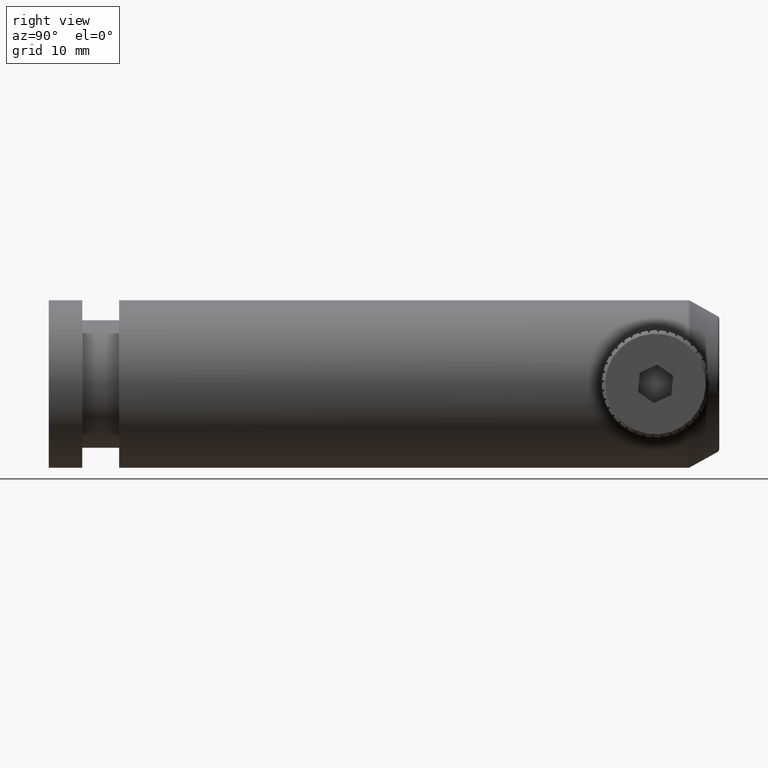
[diagram: clean part render]
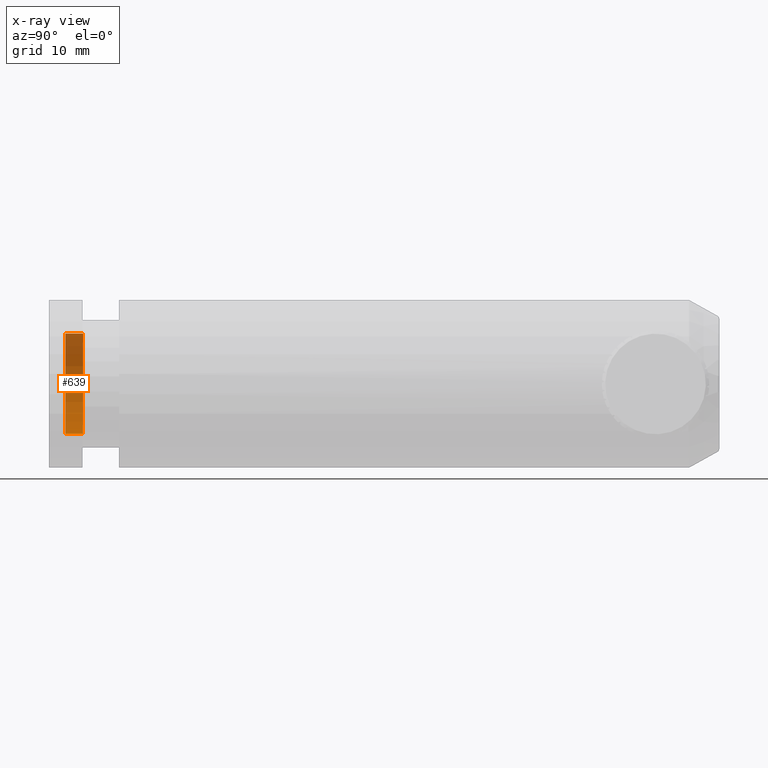
[diagram: x-ray — body ghosted, one internal face saturated and labeled with its STEP entity id]
A machine part, right view, then the same camera in x-ray: the body is ghosted and one INTERNAL B-rep face — a face not visible from any outside direction — is saturated and labeled: STEP entity #639.
In plain terms, the highlighted cylindrical surface (partial cylindrical patch) has radius 7.5 mm, axis along (-0, -1, -0).
Its self-contained STEP definition (entity closure, byte-faithful):
#146 = DIRECTION ( 'NONE',  ( -0.0000000000000000000, -1.000000000000000000, -0.0000000000000000000 ) ) ;
#639 = ADVANCED_FACE ( 'NONE', ( #3702 ), #4405, .F. ) ;
#981 = AXIS2_PLACEMENT_3D ( 'NONE', #8721, #8766, #2371 ) ;
#1264 = ORIENTED_EDGE ( 'NONE', *, *, #2199, .T. ) ;
#1296 = CARTESIAN_POINT ( 'NONE',  ( -3.204778668925413854, -7.213612059609837424, 1.686509214775364569E-15 ) ) ;
#1300 = CIRCLE ( 'NONE', #981, 7.500000000000000000 ) ;
#1303 = LINE ( 'NONE', #5553, #8859 ) ;
#1738 = VECTOR ( 'NONE', #7318, 1000.000000000000000 ) ;
#2199 = EDGE_CURVE ( 'NONE', #7729, #8058, #5037, .T. ) ;
#2224 = CARTESIAN_POINT ( 'NONE',  ( -3.204778668925413854, -0.3136120596098426749, 1.686509214775364569E-15 ) ) ;
#2237 = ORIENTED_EDGE ( 'NONE', *, *, #7839, .F. ) ;
#2371 = DIRECTION ( 'NONE',  ( 0.0000000000000000000, 0.0000000000000000000, 1.000000000000000000 ) ) ;
#2945 = VERTEX_POINT ( 'NONE', #5407 ) ;
#3702 = FACE_OUTER_BOUND ( 'NONE', #8220, .T. ) ;
#3720 = CARTESIAN_POINT ( 'NONE',  ( -3.204778668925413854, -7.213612059609837424, -7.499999999999998224 ) ) ;
#3853 = AXIS2_PLACEMENT_3D ( 'NONE', #1296, #9066, #6975 ) ;
#3862 = EDGE_CURVE ( 'NONE', #8058, #7648, #1303, .T. ) ;
#4405 = CYLINDRICAL_SURFACE ( 'NONE', #6414, 7.500000000000000000 ) ;
#5037 = CIRCLE ( 'NONE', #3853, 7.500000000000000000 ) ;
#5407 = CARTESIAN_POINT ( 'NONE',  ( -3.204778668925413854, -9.813612059609837956, -7.499999999999998224 ) ) ;
#5553 = CARTESIAN_POINT ( 'NONE',  ( -3.204778668925412966, -0.3136120596098426749, 7.500000000000001776 ) ) ;
#5567 = CARTESIAN_POINT ( 'NONE',  ( -3.204778668925412966, -7.213612059609837424, 7.500000000000001776 ) ) ;
#5608 = ORIENTED_EDGE ( 'NONE', *, *, #7877, .F. ) ;
#5612 = ORIENTED_EDGE ( 'NONE', *, *, #3862, .T. ) ;
#5762 = CARTESIAN_POINT ( 'NONE',  ( -3.204778668925412966, -9.813612059609837956, 7.500000000000001776 ) ) ;
#5893 = LINE ( 'NONE', #6757, #1738 ) ;
#6414 = AXIS2_PLACEMENT_3D ( 'NONE', #2224, #146, #9128 ) ;
#6757 = CARTESIAN_POINT ( 'NONE',  ( -3.204778668925413854, -0.3136120596098426749, -7.499999999999998224 ) ) ;
#6975 = DIRECTION ( 'NONE',  ( 0.0000000000000000000, 0.0000000000000000000, 1.000000000000000000 ) ) ;
#7318 = DIRECTION ( 'NONE',  ( -0.0000000000000000000, -1.000000000000000000, -0.0000000000000000000 ) ) ;
#7648 = VERTEX_POINT ( 'NONE', #5762 ) ;
#7729 = VERTEX_POINT ( 'NONE', #3720 ) ;
#7839 = EDGE_CURVE ( 'NONE', #7729, #2945, #5893, .T. ) ;
#7877 = EDGE_CURVE ( 'NONE', #2945, #7648, #1300, .T. ) ;
#8058 = VERTEX_POINT ( 'NONE', #5567 ) ;
#8220 = EDGE_LOOP ( 'NONE', ( #1264, #5612, #5608, #2237 ) ) ;
#8379 = DIRECTION ( 'NONE',  ( -0.0000000000000000000, -1.000000000000000000, -0.0000000000000000000 ) ) ;
#8721 = CARTESIAN_POINT ( 'NONE',  ( -3.204778668925413854, -9.813612059609837956, 1.686509214775364569E-15 ) ) ;
#8766 = DIRECTION ( 'NONE',  ( 0.0000000000000000000, 1.000000000000000000, 0.0000000000000000000 ) ) ;
#8859 = VECTOR ( 'NONE', #8379, 1000.000000000000000 ) ;
#9066 = DIRECTION ( 'NONE',  ( 0.0000000000000000000, 1.000000000000000000, 0.0000000000000000000 ) ) ;
#9128 = DIRECTION ( 'NONE',  ( 0.0000000000000000000, 0.0000000000000000000, -1.000000000000000000 ) ) ;